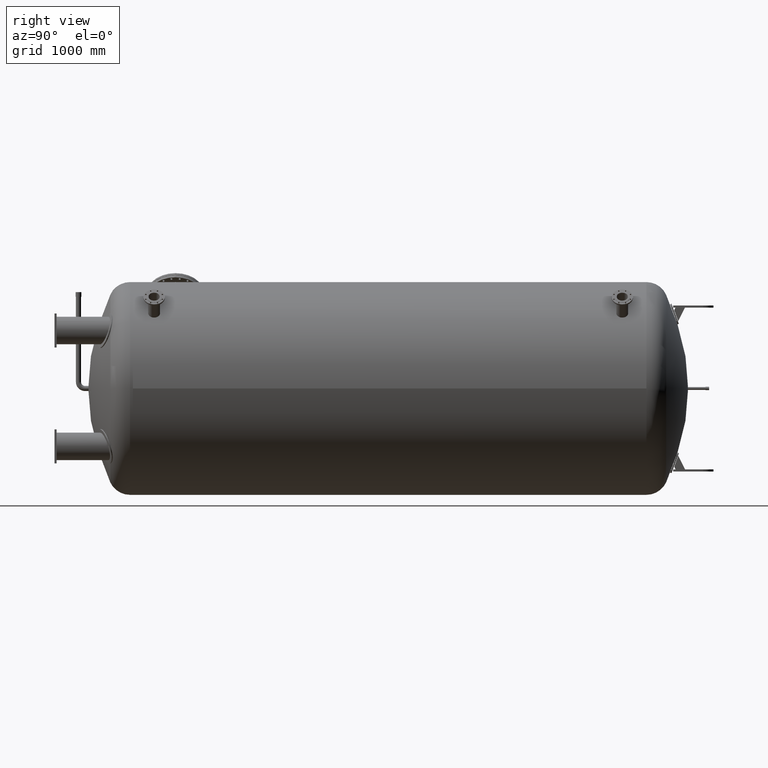
[diagram: clean part render]
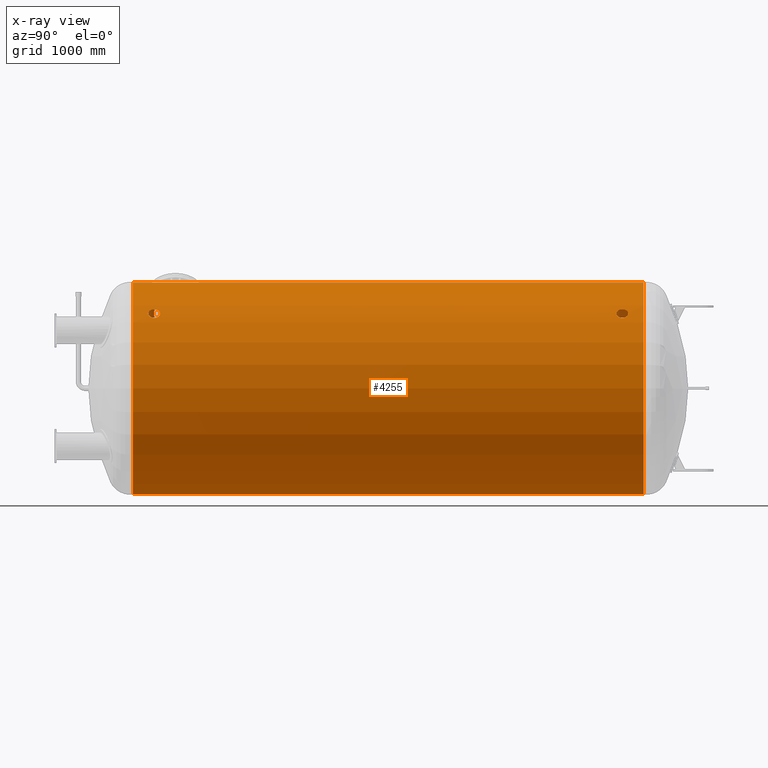
[diagram: x-ray — body ghosted, one internal face saturated and labeled with its STEP entity id]
A machine part, right view, then the same camera in x-ray: the body is ghosted and one INTERNAL B-rep face — a face not visible from any outside direction — is saturated and labeled: STEP entity #4255.
In plain terms, the highlighted cylindrical surface (bore or boss wall) has radius 1244 mm, axis along (0, 1, 0).
Its self-contained STEP definition (entity closure, byte-faithful):
#169=B_SPLINE_CURVE_WITH_KNOTS('',3,(#6929,#6930,#6931,#6932,#6933,#6934,
#6935,#6936,#6937,#6938,#6939,#6940,#6941,#6942,#6943,#6944,#6945,#6946,
#6947,#6948,#6949,#6950,#6951,#6952,#6953,#6954),.UNSPECIFIED.,.F.,.F.,
(4,2,2,2,2,2,2,2,2,2,2,2,4),(0.,0.506647840801163,1.01329568160233,1.51994352217001,
2.0265913627377,2.53323920330538,3.03988704387307,3.54653488467423,4.05318272547539,
4.55983056627656,5.06647840707772,5.5731262476454,6.07977408821309),
 .UNSPECIFIED.);
#170=B_SPLINE_CURVE_WITH_KNOTS('',3,(#6955,#6956,#6957,#6958,#6959,#6960,
#6961,#6962,#6963,#6964),.UNSPECIFIED.,.F.,.F.,(4,2,2,2,4),(6.07977408821309,
6.58642192878077,7.09306976934846,7.59971761014962,8.10636545095079),
 .UNSPECIFIED.);
#173=B_SPLINE_CURVE_WITH_KNOTS('',3,(#7008,#7009,#7010,#7011,#7012,#7013,
#7014,#7015,#7016,#7017,#7018,#7019,#7020,#7021,#7022,#7023,#7024,#7025,
#7026,#7027,#7028,#7029,#7030,#7031,#7032,#7033),.UNSPECIFIED.,.F.,.F.,
(4,2,2,2,2,2,2,2,2,2,2,2,4),(0.,0.506647840801163,1.01329568160233,1.51994352217001,
2.0265913627377,2.53323920330538,3.03988704387307,3.54653488467423,4.05318272547539,
4.55983056627656,5.06647840707772,5.5731262476454,6.07977408821309),
 .UNSPECIFIED.);
#174=B_SPLINE_CURVE_WITH_KNOTS('',3,(#7034,#7035,#7036,#7037,#7038,#7039,
#7040,#7041,#7042,#7043),.UNSPECIFIED.,.F.,.F.,(4,2,2,2,4),(6.07977408821309,
6.58642192878077,7.09306976934846,7.59971761014962,8.10636545095079),
 .UNSPECIFIED.);
#177=B_SPLINE_CURVE_WITH_KNOTS('',3,(#7087,#7088,#7089,#7090,#7091,#7092,
#7093,#7094,#7095,#7096,#7097,#7098,#7099,#7100,#7101,#7102,#7103,#7104,
#7105,#7106,#7107,#7108,#7109,#7110,#7111,#7112),.UNSPECIFIED.,.F.,.F.,
(4,2,2,2,2,2,2,2,2,2,2,2,4),(0.,0.506647840801148,1.0132956816023,1.51994352216998,
2.02659136273766,2.53323920330535,3.03988704387303,3.54653488467418,4.05318272547533,
4.55983056627651,5.06647840707768,5.57312624764536,6.07977408821304),
 .UNSPECIFIED.);
#178=B_SPLINE_CURVE_WITH_KNOTS('',3,(#7113,#7114,#7115,#7116,#7117,#7118,
#7119,#7120,#7121,#7122),.UNSPECIFIED.,.F.,.F.,(4,2,2,2,4),(6.07977408821304,
6.58642192878072,7.0930697693484,7.59971761014958,8.10636545095075),
 .UNSPECIFIED.);
#181=B_SPLINE_CURVE_WITH_KNOTS('',3,(#7166,#7167,#7168,#7169,#7170,#7171,
#7172,#7173,#7174,#7175,#7176,#7177,#7178,#7179,#7180,#7181,#7182,#7183,
#7184,#7185,#7186,#7187,#7188,#7189,#7190,#7191),.UNSPECIFIED.,.F.,.F.,
(4,2,2,2,2,2,2,2,2,2,2,2,4),(0.,0.506647840801163,1.01329568160233,1.51994352217001,
2.0265913627377,2.53323920330538,3.03988704387307,3.54653488467423,4.05318272547539,
4.55983056627656,5.06647840707772,5.5731262476454,6.07977408821309),
 .UNSPECIFIED.);
#182=B_SPLINE_CURVE_WITH_KNOTS('',3,(#7192,#7193,#7194,#7195,#7196,#7197,
#7198,#7199,#7200,#7201),.UNSPECIFIED.,.F.,.F.,(4,2,2,2,4),(6.07977408821309,
6.58642192878077,7.09306976934846,7.59971761014962,8.10636545095079),
 .UNSPECIFIED.);
#185=B_SPLINE_CURVE_WITH_KNOTS('',3,(#7245,#7246,#7247,#7248,#7249,#7250,
#7251,#7252,#7253,#7254,#7255,#7256,#7257,#7258,#7259,#7260,#7261,#7262,
#7263,#7264,#7265,#7266,#7267,#7268,#7269,#7270),.UNSPECIFIED.,.F.,.F.,
(4,2,2,2,2,2,2,2,2,2,2,2,4),(0.,0.506647840801163,1.01329568160233,1.51994352217001,
2.0265913627377,2.53323920330538,3.03988704387307,3.54653488467423,4.05318272547539,
4.55983056627656,5.06647840707772,5.5731262476454,6.07977408821309),
 .UNSPECIFIED.);
#186=B_SPLINE_CURVE_WITH_KNOTS('',3,(#7271,#7272,#7273,#7274,#7275,#7276,
#7277,#7278,#7279,#7280),.UNSPECIFIED.,.F.,.F.,(4,2,2,2,4),(6.07977408821309,
6.58642192878077,7.09306976934846,7.59971761014962,8.10636545095079),
 .UNSPECIFIED.);
#189=B_SPLINE_CURVE_WITH_KNOTS('',3,(#7340,#7341,#7342,#7343,#7344,#7345,
#7346,#7347,#7348,#7349,#7350,#7351,#7352,#7353,#7354,#7355,#7356,#7357,
#7358,#7359,#7360,#7361,#7362,#7363,#7364,#7365,#7366,#7367,#7368,#7369,
#7370,#7371,#7372,#7373,#7374,#7375,#7376,#7377,#7378,#7379,#7380,#7381,
#7382,#7383,#7384,#7385,#7386,#7387,#7388,#7389),.UNSPECIFIED.,.F.,.F.,
(4,2,2,2,2,2,2,2,2,2,2,2,2,2,2,2,2,2,2,2,2,2,2,2,4),(0.,1.315875359373,
2.631750718746,3.947626078119,5.26350143749201,6.57937635451094,7.89525127152988,
9.21112618854882,10.5270011055678,11.8428760225867,13.1587509396056,14.4746258566246,
15.7905007736435,17.1063761330165,18.4222514923895,19.7381268517625,21.0540022111355,
22.3698775705085,23.6857529298815,25.0016282892545,26.3175036486275,27.6333785656465,
28.9492534826654,30.2651283996843,31.5810033167033),.UNSPECIFIED.);
#190=B_SPLINE_CURVE_WITH_KNOTS('',3,(#7390,#7391,#7392,#7393,#7394,#7395,
#7396,#7397,#7398,#7399,#7400,#7401,#7402,#7403,#7404,#7405,#7406,#7407),
 .UNSPECIFIED.,.F.,.F.,(4,2,2,2,2,2,2,2,4),(31.5810033167033,32.8968782337222,
34.2127531507412,35.5286280677601,36.844502984779,38.160378344152,39.476253703525,
40.792129062898,42.108004422271),.UNSPECIFIED.);
#193=B_SPLINE_CURVE_WITH_KNOTS('',3,(#7483,#7484,#7485,#7486,#7487,#7488,
#7489,#7490,#7491,#7492,#7493,#7494,#7495,#7496,#7497,#7498,#7499,#7500,
#7501,#7502,#7503,#7504,#7505,#7506,#7507,#7508,#7509,#7510,#7511,#7512,
#7513,#7514,#7515,#7516,#7517,#7518,#7519,#7520,#7521,#7522,#7523,#7524,
#7525,#7526,#7527,#7528,#7529,#7530,#7531,#7532),.UNSPECIFIED.,.F.,.F.,
(4,2,2,2,2,2,2,2,2,2,2,2,2,2,2,2,2,2,2,2,2,2,2,2,4),(0.,1.31587535937302,
2.63175071874603,3.94762607811905,5.26350143749206,6.579376354511,7.89525127152993,
9.21112618854886,10.5270011055678,11.8428760225867,13.1587509396057,14.4746258566246,
15.7905007736435,17.1063761330165,18.4222514923895,19.7381268517626,21.0540022111356,
22.3698775705086,23.6857529298816,25.0016282892546,26.3175036486276,27.6333785656466,
28.9492534826655,30.2651283996844,31.5810033167034),.UNSPECIFIED.);
#194=B_SPLINE_CURVE_WITH_KNOTS('',3,(#7533,#7534,#7535,#7536,#7537,#7538,
#7539,#7540,#7541,#7542,#7543,#7544,#7545,#7546,#7547,#7548,#7549,#7550),
 .UNSPECIFIED.,.F.,.F.,(4,2,2,2,2,2,2,2,4),(31.5810033167034,32.8968782337223,
34.2127531507412,35.5286280677602,36.8445029847791,38.1603783441521,39.4762537035251,
40.7921290628981,42.1080044222712),.UNSPECIFIED.);
#197=B_SPLINE_CURVE_WITH_KNOTS('',3,(#7626,#7627,#7628,#7629,#7630,#7631,
#7632,#7633,#7634,#7635,#7636,#7637,#7638,#7639,#7640,#7641,#7642,#7643,
#7644,#7645,#7646,#7647,#7648,#7649,#7650,#7651,#7652,#7653,#7654,#7655,
#7656,#7657,#7658,#7659,#7660,#7661,#7662,#7663,#7664,#7665,#7666,#7667,
#7668,#7669,#7670,#7671,#7672,#7673,#7674,#7675),.UNSPECIFIED.,.F.,.F.,
(4,2,2,2,2,2,2,2,2,2,2,2,2,2,2,2,2,2,2,2,2,2,2,2,4),(0.,1.315875359373,
2.631750718746,3.947626078119,5.26350143749201,6.57937635451094,7.89525127152988,
9.21112618854882,10.5270011055678,11.8428760225867,13.1587509396056,14.4746258566246,
15.7905007736435,17.1063761330165,18.4222514923895,19.7381268517625,21.0540022111355,
22.3698775705085,23.6857529298815,25.0016282892545,26.3175036486275,27.6333785656465,
28.9492534826654,30.2651283996843,31.5810033167033),.UNSPECIFIED.);
#198=B_SPLINE_CURVE_WITH_KNOTS('',3,(#7676,#7677,#7678,#7679,#7680,#7681,
#7682,#7683,#7684,#7685,#7686,#7687,#7688,#7689,#7690,#7691,#7692,#7693),
 .UNSPECIFIED.,.F.,.F.,(4,2,2,2,2,2,2,2,4),(31.5810033167033,32.8968782337222,
34.2127531507412,35.5286280677601,36.844502984779,38.160378344152,39.476253703525,
40.792129062898,42.108004422271),.UNSPECIFIED.);
#201=B_SPLINE_CURVE_WITH_KNOTS('',3,(#7769,#7770,#7771,#7772,#7773,#7774,
#7775,#7776,#7777,#7778,#7779,#7780,#7781,#7782,#7783,#7784,#7785,#7786,
#7787,#7788,#7789,#7790,#7791,#7792,#7793,#7794,#7795,#7796,#7797,#7798,
#7799,#7800,#7801,#7802,#7803,#7804,#7805,#7806,#7807,#7808,#7809,#7810,
#7811,#7812,#7813,#7814,#7815,#7816,#7817,#7818),.UNSPECIFIED.,.F.,.F.,
(4,2,2,2,2,2,2,2,2,2,2,2,2,2,2,2,2,2,2,2,2,2,2,2,4),(0.,1.31587535937302,
2.63175071874603,3.94762607811905,5.26350143749206,6.579376354511,7.89525127152993,
9.21112618854886,10.5270011055678,11.8428760225867,13.1587509396057,14.4746258566246,
15.7905007736435,17.1063761330165,18.4222514923895,19.7381268517626,21.0540022111356,
22.3698775705086,23.6857529298816,25.0016282892546,26.3175036486276,27.6333785656466,
28.9492534826655,30.2651283996844,31.5810033167034),.UNSPECIFIED.);
#202=B_SPLINE_CURVE_WITH_KNOTS('',3,(#7819,#7820,#7821,#7822,#7823,#7824,
#7825,#7826,#7827,#7828,#7829,#7830,#7831,#7832,#7833,#7834,#7835,#7836),
 .UNSPECIFIED.,.F.,.F.,(4,2,2,2,2,2,2,2,4),(31.5810033167034,32.8968782337223,
34.2127531507412,35.5286280677602,36.8445029847791,38.1603783441521,39.4762537035251,
40.7921290628981,42.1080044222712),.UNSPECIFIED.);
#205=B_SPLINE_CURVE_WITH_KNOTS('',3,(#7944,#7945,#7946,#7947,#7948,#7949,
#7950,#7951,#7952,#7953,#7954,#7955,#7956,#7957,#7958,#7959,#7960,#7961,
#7962,#7963,#7964,#7965,#7966,#7967,#7968,#7969,#7970,#7971,#7972,#7973,
#7974,#7975,#7976,#7977,#7978,#7979,#7980,#7981,#7982,#7983,#7984,#7985,
#7986,#7987,#7988,#7989,#7990,#7991,#7992,#7993,#7994,#7995,#7996,#7997,
#7998,#7999,#8000,#8001,#8002,#8003,#8004,#8005,#8006,#8007,#8008,#8009,
#8010,#8011,#8012,#8013,#8014,#8015,#8016,#8017,#8018,#8019,#8020,#8021,
#8022,#8023,#8024,#8025,#8026,#8027,#8028,#8029,#8030,#8031,#8032,#8033,
#8034,#8035,#8036,#8037,#8038,#8039,#8040,#8041),.UNSPECIFIED.,.F.,.F.,
(4,2,2,2,2,2,2,2,2,2,2,2,2,2,2,2,2,2,2,2,2,2,2,2,2,2,2,2,2,2,2,2,2,2,2,
2,2,2,2,2,2,2,2,2,2,2,2,2,4),(0.,2.39930639612063,4.79861279224126,7.19791918836188,
9.59722558448251,11.9965319806031,14.3958383767238,16.7951447728444,19.194451168965,
21.5936112864104,23.9927714038557,26.391931521301,28.7910916387464,31.1902517561917,
33.5894118736371,35.9885719910824,38.3877321085277,40.7868922259731,43.1860523434184,
45.5852124608638,47.9843725783091,50.3835326957544,52.7826928131998,55.1818529306451,
57.5810130480905,59.9803194442111,62.3796258403317,64.7789322364524,67.178238632573,
69.5775450286936,71.9768514248142,74.3761578209349,76.7754642170555,79.1747706131761,
81.5740770092968,83.9733834054174,86.372689801538,88.7719961976586,91.1713025937792,
93.5706089898999,95.9699153860205,98.3690755034658,100.768235620911,103.167395738357,
105.566555855802,107.965715973247,110.364876090693,112.764036208138,115.163196325583),
 .UNSPECIFIED.);
#206=B_SPLINE_CURVE_WITH_KNOTS('',3,(#8042,#8043,#8044,#8045,#8046,#8047,
#8048,#8049,#8050,#8051,#8052,#8053,#8054,#8055,#8056,#8057,#8058,#8059,
#8060,#8061,#8062,#8063,#8064,#8065,#8066,#8067,#8068,#8069,#8070,#8071,
#8072,#8073,#8074,#8075),.UNSPECIFIED.,.F.,.F.,(4,2,2,2,2,2,2,2,2,2,2,2,
2,2,2,2,4),(115.163196325583,117.562356443029,119.961516560474,122.360676677919,
124.759836795365,127.15899691281,129.558157030255,131.957317147701,134.356477265146,
136.755783661267,139.155090057387,141.554396453508,143.953702849628,146.353009245749,
148.75231564187,151.15162203799,153.550928434111),.UNSPECIFIED.);
#399=FACE_BOUND('',#834,.T.);
#400=FACE_BOUND('',#835,.T.);
#401=FACE_BOUND('',#836,.T.);
#402=FACE_BOUND('',#837,.T.);
#403=FACE_BOUND('',#838,.T.);
#404=FACE_BOUND('',#839,.T.);
#405=FACE_BOUND('',#840,.T.);
#406=FACE_BOUND('',#841,.T.);
#407=FACE_BOUND('',#842,.T.);
#408=FACE_BOUND('',#843,.T.);
#600=FACE_OUTER_BOUND('',#833,.T.);
#833=EDGE_LOOP('',(#3001,#3002,#3003,#3004,#3005,#3006));
#834=EDGE_LOOP('',(#3007,#3008));
#835=EDGE_LOOP('',(#3009,#3010));
#836=EDGE_LOOP('',(#3011,#3012));
#837=EDGE_LOOP('',(#3013,#3014));
#838=EDGE_LOOP('',(#3015,#3016));
#839=EDGE_LOOP('',(#3017,#3018));
#840=EDGE_LOOP('',(#3019,#3020));
#841=EDGE_LOOP('',(#3021,#3022));
#842=EDGE_LOOP('',(#3023,#3024));
#843=EDGE_LOOP('',(#3025,#3026));
#1225=LINE('',#8148,#1451);
#1451=VECTOR('',#5588,1244.);
#1682=CIRCLE('',#4964,1244.);
#1683=CIRCLE('',#4965,1244.);
#1684=CIRCLE('',#4966,1244.);
#1685=CIRCLE('',#4967,1244.);
#1955=VERTEX_POINT('',#6926);
#1956=VERTEX_POINT('',#6928);
#1959=VERTEX_POINT('',#7005);
#1960=VERTEX_POINT('',#7007);
#1963=VERTEX_POINT('',#7084);
#1964=VERTEX_POINT('',#7086);
#1967=VERTEX_POINT('',#7163);
#1968=VERTEX_POINT('',#7165);
#1971=VERTEX_POINT('',#7242);
#1972=VERTEX_POINT('',#7244);
#1975=VERTEX_POINT('',#7337);
#1976=VERTEX_POINT('',#7339);
#1979=VERTEX_POINT('',#7480);
#1980=VERTEX_POINT('',#7482);
#1983=VERTEX_POINT('',#7623);
#1984=VERTEX_POINT('',#7625);
#1987=VERTEX_POINT('',#7766);
#1988=VERTEX_POINT('',#7768);
#1991=VERTEX_POINT('',#7941);
#1992=VERTEX_POINT('',#7943);
#1993=VERTEX_POINT('',#8144);
#1994=VERTEX_POINT('',#8145);
#1995=VERTEX_POINT('',#8147);
#1996=VERTEX_POINT('',#8149);
#2353=EDGE_CURVE('',#1956,#1955,#169,.T.);
#2354=EDGE_CURVE('',#1955,#1956,#170,.T.);
#2358=EDGE_CURVE('',#1960,#1959,#173,.T.);
#2359=EDGE_CURVE('',#1959,#1960,#174,.T.);
#2363=EDGE_CURVE('',#1964,#1963,#177,.T.);
#2364=EDGE_CURVE('',#1963,#1964,#178,.T.);
#2368=EDGE_CURVE('',#1968,#1967,#181,.T.);
#2369=EDGE_CURVE('',#1967,#1968,#182,.T.);
#2373=EDGE_CURVE('',#1972,#1971,#185,.T.);
#2374=EDGE_CURVE('',#1971,#1972,#186,.T.);
#2378=EDGE_CURVE('',#1976,#1975,#189,.T.);
#2379=EDGE_CURVE('',#1975,#1976,#190,.T.);
#2383=EDGE_CURVE('',#1980,#1979,#193,.T.);
#2384=EDGE_CURVE('',#1979,#1980,#194,.T.);
#2388=EDGE_CURVE('',#1984,#1983,#197,.T.);
#2389=EDGE_CURVE('',#1983,#1984,#198,.T.);
#2393=EDGE_CURVE('',#1988,#1987,#201,.T.);
#2394=EDGE_CURVE('',#1987,#1988,#202,.T.);
#2398=EDGE_CURVE('',#1992,#1991,#205,.T.);
#2399=EDGE_CURVE('',#1991,#1992,#206,.T.);
#2401=EDGE_CURVE('',#1993,#1994,#1682,.T.);
#2402=EDGE_CURVE('',#1994,#1995,#1225,.T.);
#2403=EDGE_CURVE('',#1996,#1995,#1683,.T.);
#2404=EDGE_CURVE('',#1995,#1996,#1684,.T.);
#2405=EDGE_CURVE('',#1994,#1993,#1685,.T.);
#3001=ORIENTED_EDGE('',*,*,#2401,.T.);
#3002=ORIENTED_EDGE('',*,*,#2402,.T.);
#3003=ORIENTED_EDGE('',*,*,#2403,.F.);
#3004=ORIENTED_EDGE('',*,*,#2404,.F.);
#3005=ORIENTED_EDGE('',*,*,#2402,.F.);
#3006=ORIENTED_EDGE('',*,*,#2405,.T.);
#3007=ORIENTED_EDGE('',*,*,#2353,.T.);
#3008=ORIENTED_EDGE('',*,*,#2354,.T.);
#3009=ORIENTED_EDGE('',*,*,#2358,.T.);
#3010=ORIENTED_EDGE('',*,*,#2359,.T.);
#3011=ORIENTED_EDGE('',*,*,#2363,.T.);
#3012=ORIENTED_EDGE('',*,*,#2364,.T.);
#3013=ORIENTED_EDGE('',*,*,#2368,.T.);
#3014=ORIENTED_EDGE('',*,*,#2369,.T.);
#3015=ORIENTED_EDGE('',*,*,#2373,.T.);
#3016=ORIENTED_EDGE('',*,*,#2374,.T.);
#3017=ORIENTED_EDGE('',*,*,#2378,.T.);
#3018=ORIENTED_EDGE('',*,*,#2379,.T.);
#3019=ORIENTED_EDGE('',*,*,#2383,.T.);
#3020=ORIENTED_EDGE('',*,*,#2384,.T.);
#3021=ORIENTED_EDGE('',*,*,#2388,.T.);
#3022=ORIENTED_EDGE('',*,*,#2389,.T.);
#3023=ORIENTED_EDGE('',*,*,#2393,.T.);
#3024=ORIENTED_EDGE('',*,*,#2394,.T.);
#3025=ORIENTED_EDGE('',*,*,#2398,.T.);
#3026=ORIENTED_EDGE('',*,*,#2399,.T.);
#4050=CYLINDRICAL_SURFACE('',#4963,1244.);
#4255=ADVANCED_FACE('',(#600,#399,#400,#401,#402,#403,#404,#405,#406,#407,
#408),#4050,.F.);
#4963=AXIS2_PLACEMENT_3D('',#8143,#5584,#5585);
#4964=AXIS2_PLACEMENT_3D('',#8146,#5586,#5587);
#4965=AXIS2_PLACEMENT_3D('',#8150,#5589,#5590);
#4966=AXIS2_PLACEMENT_3D('',#8151,#5591,#5592);
#4967=AXIS2_PLACEMENT_3D('',#8152,#5593,#5594);
#5584=DIRECTION('center_axis',(0.,1.,0.));
#5585=DIRECTION('ref_axis',(-1.,0.,0.));
#5586=DIRECTION('center_axis',(0.,1.,0.));
#5587=DIRECTION('ref_axis',(1.,0.,0.));
#5588=DIRECTION('',(0.,-1.,0.));
#5589=DIRECTION('center_axis',(0.,1.,0.));
#5590=DIRECTION('ref_axis',(1.,0.,0.));
#5591=DIRECTION('center_axis',(0.,1.,0.));
#5592=DIRECTION('ref_axis',(1.,0.,0.));
#5593=DIRECTION('center_axis',(0.,1.,0.));
#5594=DIRECTION('ref_axis',(1.,0.,0.));
#6926=CARTESIAN_POINT('',(-1168.97762025767,4413.45,425.473058297131));
#6928=CARTESIAN_POINT('',(-1173.50946413052,4400.,412.80932353339));
#6929=CARTESIAN_POINT('Ctrl Pts',(-1173.50946413052,4400.,412.80932353339));
#6930=CARTESIAN_POINT('Ctrl Pts',(-1173.50946413052,4398.311173864,412.80932353339));
#6931=CARTESIAN_POINT('Ctrl Pts',(-1173.39759141645,4396.50978857211,413.127781116768));
#6932=CARTESIAN_POINT('Ctrl Pts',(-1172.94101051952,4393.19599057381,414.422317103967));
#6933=CARTESIAN_POINT('Ctrl Pts',(-1172.59611783093,4391.68357675589,415.398327580127));
#6934=CARTESIAN_POINT('Ctrl Pts',(-1171.79642074341,4389.29525083075,417.648865006801));
#6935=CARTESIAN_POINT('Ctrl Pts',(-1171.28828033192,4388.26014074182,419.073394190536));
#6936=CARTESIAN_POINT('Ctrl Pts',(-1170.16777890146,4386.88751496208,422.192035195029));
#6937=CARTESIAN_POINT('Ctrl Pts',(-1169.55523281449,4386.55,423.886080840069));
#6938=CARTESIAN_POINT('Ctrl Pts',(-1168.40000770085,4386.55,427.060035754193));
#6939=CARTESIAN_POINT('Ctrl Pts',(-1167.78033367605,4386.88751496208,428.75148704203));
#6940=CARTESIAN_POINT('Ctrl Pts',(-1166.63406377361,4388.26014074182,431.860749089745));
#6941=CARTESIAN_POINT('Ctrl Pts',(-1166.10765220321,4389.29525083075,433.278628115489));
#6942=CARTESIAN_POINT('Ctrl Pts',(-1165.27363814029,4391.68357675589,435.516675184585));
#6943=CARTESIAN_POINT('Ctrl Pts',(-1164.91047382685,4393.19599057381,436.48603533317));
#6944=CARTESIAN_POINT('Ctrl Pts',(-1164.42812339292,4396.50978857211,437.771191975949));
#6945=CARTESIAN_POINT('Ctrl Pts',(-1164.30912227506,4398.311173864,438.087055032531));
#6946=CARTESIAN_POINT('Ctrl Pts',(-1164.30912227506,4401.688826136,438.087055032531));
#6947=CARTESIAN_POINT('Ctrl Pts',(-1164.42812339292,4403.49021142789,437.771191975949));
#6948=CARTESIAN_POINT('Ctrl Pts',(-1164.91047382685,4406.80400942619,436.48603533317));
#6949=CARTESIAN_POINT('Ctrl Pts',(-1165.27363814029,4408.31642324411,435.516675184585));
#6950=CARTESIAN_POINT('Ctrl Pts',(-1166.10765220321,4410.70474916925,433.278628115489));
#6951=CARTESIAN_POINT('Ctrl Pts',(-1166.63406377361,4411.73985925818,431.860749089745));
#6952=CARTESIAN_POINT('Ctrl Pts',(-1167.78033367605,4413.11248503792,428.75148704203));
#6953=CARTESIAN_POINT('Ctrl Pts',(-1168.40000770085,4413.45,427.060035754193));
#6954=CARTESIAN_POINT('Ctrl Pts',(-1168.97762025767,4413.45,425.473058297131));
#6955=CARTESIAN_POINT('Ctrl Pts',(-1168.97762025767,4413.45,425.473058297131));
#6956=CARTESIAN_POINT('Ctrl Pts',(-1169.55523281449,4413.45,423.886080840069));
#6957=CARTESIAN_POINT('Ctrl Pts',(-1170.16777890146,4413.11248503792,422.192035195029));
#6958=CARTESIAN_POINT('Ctrl Pts',(-1171.28828033192,4411.73985925818,419.073394190536));
#6959=CARTESIAN_POINT('Ctrl Pts',(-1171.79642074341,4410.70474916925,417.648865006801));
#6960=CARTESIAN_POINT('Ctrl Pts',(-1172.59611783093,4408.31642324411,415.398327580127));
#6961=CARTESIAN_POINT('Ctrl Pts',(-1172.94101051952,4406.80400942619,414.422317103967));
#6962=CARTESIAN_POINT('Ctrl Pts',(-1173.39759141645,4403.49021142789,413.127781116768));
#6963=CARTESIAN_POINT('Ctrl Pts',(-1173.50946413052,4401.688826136,412.80932353339));
#6964=CARTESIAN_POINT('Ctrl Pts',(-1173.50946413052,4400.,412.80932353339));
#7005=CARTESIAN_POINT('',(-1168.97762025767,3013.45,425.473058297131));
#7007=CARTESIAN_POINT('',(-1173.50946413052,3000.,412.80932353339));
#7008=CARTESIAN_POINT('Ctrl Pts',(-1173.50946413052,3000.,412.80932353339));
#7009=CARTESIAN_POINT('Ctrl Pts',(-1173.50946413052,2998.311173864,412.80932353339));
#7010=CARTESIAN_POINT('Ctrl Pts',(-1173.39759141645,2996.50978857211,413.127781116768));
#7011=CARTESIAN_POINT('Ctrl Pts',(-1172.94101051952,2993.19599057381,414.422317103967));
#7012=CARTESIAN_POINT('Ctrl Pts',(-1172.59611783093,2991.68357675589,415.398327580127));
#7013=CARTESIAN_POINT('Ctrl Pts',(-1171.79642074341,2989.29525083075,417.648865006801));
#7014=CARTESIAN_POINT('Ctrl Pts',(-1171.28828033192,2988.26014074182,419.073394190536));
#7015=CARTESIAN_POINT('Ctrl Pts',(-1170.16777890146,2986.88751496208,422.192035195029));
#7016=CARTESIAN_POINT('Ctrl Pts',(-1169.55523281449,2986.55,423.886080840069));
#7017=CARTESIAN_POINT('Ctrl Pts',(-1168.40000770085,2986.55,427.060035754193));
#7018=CARTESIAN_POINT('Ctrl Pts',(-1167.78033367605,2986.88751496208,428.75148704203));
#7019=CARTESIAN_POINT('Ctrl Pts',(-1166.63406377361,2988.26014074182,431.860749089745));
#7020=CARTESIAN_POINT('Ctrl Pts',(-1166.10765220321,2989.29525083075,433.278628115489));
#7021=CARTESIAN_POINT('Ctrl Pts',(-1165.27363814029,2991.68357675589,435.516675184585));
#7022=CARTESIAN_POINT('Ctrl Pts',(-1164.91047382685,2993.19599057381,436.48603533317));
#7023=CARTESIAN_POINT('Ctrl Pts',(-1164.42812339292,2996.50978857211,437.771191975949));
#7024=CARTESIAN_POINT('Ctrl Pts',(-1164.30912227506,2998.311173864,438.087055032531));
#7025=CARTESIAN_POINT('Ctrl Pts',(-1164.30912227506,3001.688826136,438.087055032531));
#7026=CARTESIAN_POINT('Ctrl Pts',(-1164.42812339292,3003.49021142789,437.771191975949));
#7027=CARTESIAN_POINT('Ctrl Pts',(-1164.91047382685,3006.80400942619,436.48603533317));
#7028=CARTESIAN_POINT('Ctrl Pts',(-1165.27363814029,3008.31642324411,435.516675184585));
#7029=CARTESIAN_POINT('Ctrl Pts',(-1166.10765220321,3010.70474916925,433.278628115489));
#7030=CARTESIAN_POINT('Ctrl Pts',(-1166.63406377361,3011.73985925818,431.860749089745));
#7031=CARTESIAN_POINT('Ctrl Pts',(-1167.78033367605,3013.11248503792,428.75148704203));
#7032=CARTESIAN_POINT('Ctrl Pts',(-1168.40000770085,3013.45,427.060035754193));
#7033=CARTESIAN_POINT('Ctrl Pts',(-1168.97762025767,3013.45,425.473058297131));
#7034=CARTESIAN_POINT('Ctrl Pts',(-1168.97762025767,3013.45,425.473058297131));
#7035=CARTESIAN_POINT('Ctrl Pts',(-1169.55523281449,3013.45,423.886080840069));
#7036=CARTESIAN_POINT('Ctrl Pts',(-1170.16777890146,3013.11248503792,422.192035195029));
#7037=CARTESIAN_POINT('Ctrl Pts',(-1171.28828033192,3011.73985925818,419.073394190536));
#7038=CARTESIAN_POINT('Ctrl Pts',(-1171.79642074341,3010.70474916925,417.648865006801));
#7039=CARTESIAN_POINT('Ctrl Pts',(-1172.59611783093,3008.31642324411,415.398327580127));
#7040=CARTESIAN_POINT('Ctrl Pts',(-1172.94101051952,3006.80400942619,414.422317103967));
#7041=CARTESIAN_POINT('Ctrl Pts',(-1173.39759141645,3003.49021142789,413.127781116768));
#7042=CARTESIAN_POINT('Ctrl Pts',(-1173.50946413052,3001.688826136,412.80932353339));
#7043=CARTESIAN_POINT('Ctrl Pts',(-1173.50946413052,3000.,412.80932353339));
#7084=CARTESIAN_POINT('',(-1168.97762025767,1613.45,425.473058297131));
#7086=CARTESIAN_POINT('',(-1173.50946413052,1600.,412.80932353339));
#7087=CARTESIAN_POINT('Ctrl Pts',(-1173.50946413052,1600.,412.80932353339));
#7088=CARTESIAN_POINT('Ctrl Pts',(-1173.50946413052,1598.311173864,412.80932353339));
#7089=CARTESIAN_POINT('Ctrl Pts',(-1173.39759141645,1596.50978857211,413.127781116768));
#7090=CARTESIAN_POINT('Ctrl Pts',(-1172.94101051952,1593.19599057381,414.422317103967));
#7091=CARTESIAN_POINT('Ctrl Pts',(-1172.59611783093,1591.68357675589,415.398327580127));
#7092=CARTESIAN_POINT('Ctrl Pts',(-1171.79642074341,1589.29525083075,417.648865006801));
#7093=CARTESIAN_POINT('Ctrl Pts',(-1171.28828033192,1588.26014074182,419.073394190535));
#7094=CARTESIAN_POINT('Ctrl Pts',(-1170.16777890146,1586.88751496208,422.192035195029));
#7095=CARTESIAN_POINT('Ctrl Pts',(-1169.55523281449,1586.55,423.886080840069));
#7096=CARTESIAN_POINT('Ctrl Pts',(-1168.40000770085,1586.55,427.060035754193));
#7097=CARTESIAN_POINT('Ctrl Pts',(-1167.78033367605,1586.88751496208,428.75148704203));
#7098=CARTESIAN_POINT('Ctrl Pts',(-1166.63406377361,1588.26014074182,431.860749089745));
#7099=CARTESIAN_POINT('Ctrl Pts',(-1166.10765220321,1589.29525083075,433.278628115489));
#7100=CARTESIAN_POINT('Ctrl Pts',(-1165.27363814029,1591.68357675589,435.516675184585));
#7101=CARTESIAN_POINT('Ctrl Pts',(-1164.91047382685,1593.19599057381,436.48603533317));
#7102=CARTESIAN_POINT('Ctrl Pts',(-1164.42812339292,1596.50978857211,437.771191975949));
#7103=CARTESIAN_POINT('Ctrl Pts',(-1164.30912227506,1598.311173864,438.087055032531));
#7104=CARTESIAN_POINT('Ctrl Pts',(-1164.30912227506,1601.688826136,438.087055032531));
#7105=CARTESIAN_POINT('Ctrl Pts',(-1164.42812339292,1603.49021142789,437.771191975949));
#7106=CARTESIAN_POINT('Ctrl Pts',(-1164.91047382685,1606.80400942619,436.48603533317));
#7107=CARTESIAN_POINT('Ctrl Pts',(-1165.27363814029,1608.31642324411,435.516675184585));
#7108=CARTESIAN_POINT('Ctrl Pts',(-1166.10765220321,1610.70474916925,433.278628115489));
#7109=CARTESIAN_POINT('Ctrl Pts',(-1166.63406377361,1611.73985925818,431.860749089745));
#7110=CARTESIAN_POINT('Ctrl Pts',(-1167.78033367605,1613.11248503792,428.75148704203));
#7111=CARTESIAN_POINT('Ctrl Pts',(-1168.40000770085,1613.45,427.060035754193));
#7112=CARTESIAN_POINT('Ctrl Pts',(-1168.97762025767,1613.45,425.473058297131));
#7113=CARTESIAN_POINT('Ctrl Pts',(-1168.97762025767,1613.45,425.473058297131));
#7114=CARTESIAN_POINT('Ctrl Pts',(-1169.55523281449,1613.45,423.886080840069));
#7115=CARTESIAN_POINT('Ctrl Pts',(-1170.16777890146,1613.11248503792,422.192035195029));
#7116=CARTESIAN_POINT('Ctrl Pts',(-1171.28828033192,1611.73985925818,419.073394190536));
#7117=CARTESIAN_POINT('Ctrl Pts',(-1171.79642074341,1610.70474916925,417.648865006801));
#7118=CARTESIAN_POINT('Ctrl Pts',(-1172.59611783093,1608.31642324411,415.398327580127));
#7119=CARTESIAN_POINT('Ctrl Pts',(-1172.94101051952,1606.80400942619,414.422317103967));
#7120=CARTESIAN_POINT('Ctrl Pts',(-1173.39759141645,1603.49021142789,413.127781116768));
#7121=CARTESIAN_POINT('Ctrl Pts',(-1173.50946413052,1601.688826136,412.80932353339));
#7122=CARTESIAN_POINT('Ctrl Pts',(-1173.50946413052,1600.,412.80932353339));
#7163=CARTESIAN_POINT('',(-1168.97762025767,5813.45,425.473058297131));
#7165=CARTESIAN_POINT('',(-1173.50946413052,5800.,412.80932353339));
#7166=CARTESIAN_POINT('Ctrl Pts',(-1173.50946413052,5800.,412.80932353339));
#7167=CARTESIAN_POINT('Ctrl Pts',(-1173.50946413052,5798.311173864,412.80932353339));
#7168=CARTESIAN_POINT('Ctrl Pts',(-1173.39759141645,5796.50978857211,413.127781116768));
#7169=CARTESIAN_POINT('Ctrl Pts',(-1172.94101051952,5793.19599057381,414.422317103967));
#7170=CARTESIAN_POINT('Ctrl Pts',(-1172.59611783093,5791.68357675589,415.398327580127));
#7171=CARTESIAN_POINT('Ctrl Pts',(-1171.79642074341,5789.29525083075,417.648865006801));
#7172=CARTESIAN_POINT('Ctrl Pts',(-1171.28828033192,5788.26014074182,419.073394190536));
#7173=CARTESIAN_POINT('Ctrl Pts',(-1170.16777890146,5786.88751496208,422.192035195029));
#7174=CARTESIAN_POINT('Ctrl Pts',(-1169.55523281449,5786.55,423.886080840069));
#7175=CARTESIAN_POINT('Ctrl Pts',(-1168.40000770085,5786.55,427.060035754193));
#7176=CARTESIAN_POINT('Ctrl Pts',(-1167.78033367605,5786.88751496208,428.75148704203));
#7177=CARTESIAN_POINT('Ctrl Pts',(-1166.63406377361,5788.26014074182,431.860749089745));
#7178=CARTESIAN_POINT('Ctrl Pts',(-1166.10765220321,5789.29525083075,433.278628115489));
#7179=CARTESIAN_POINT('Ctrl Pts',(-1165.27363814029,5791.68357675589,435.516675184585));
#7180=CARTESIAN_POINT('Ctrl Pts',(-1164.91047382685,5793.19599057381,436.48603533317));
#7181=CARTESIAN_POINT('Ctrl Pts',(-1164.42812339292,5796.50978857211,437.771191975949));
#7182=CARTESIAN_POINT('Ctrl Pts',(-1164.30912227506,5798.311173864,438.087055032531));
#7183=CARTESIAN_POINT('Ctrl Pts',(-1164.30912227506,5801.688826136,438.087055032531));
#7184=CARTESIAN_POINT('Ctrl Pts',(-1164.42812339292,5803.49021142789,437.771191975949));
#7185=CARTESIAN_POINT('Ctrl Pts',(-1164.91047382685,5806.80400942619,436.48603533317));
#7186=CARTESIAN_POINT('Ctrl Pts',(-1165.27363814029,5808.31642324411,435.516675184585));
#7187=CARTESIAN_POINT('Ctrl Pts',(-1166.10765220321,5810.70474916925,433.278628115489));
#7188=CARTESIAN_POINT('Ctrl Pts',(-1166.63406377361,5811.73985925818,431.860749089745));
#7189=CARTESIAN_POINT('Ctrl Pts',(-1167.78033367605,5813.11248503792,428.75148704203));
#7190=CARTESIAN_POINT('Ctrl Pts',(-1168.40000770085,5813.45,427.060035754193));
#7191=CARTESIAN_POINT('Ctrl Pts',(-1168.97762025767,5813.45,425.473058297131));
#7192=CARTESIAN_POINT('Ctrl Pts',(-1168.97762025767,5813.45,425.473058297131));
#7193=CARTESIAN_POINT('Ctrl Pts',(-1169.55523281449,5813.45,423.886080840069));
#7194=CARTESIAN_POINT('Ctrl Pts',(-1170.16777890146,5813.11248503792,422.192035195029));
#7195=CARTESIAN_POINT('Ctrl Pts',(-1171.28828033192,5811.73985925818,419.073394190536));
#7196=CARTESIAN_POINT('Ctrl Pts',(-1171.79642074341,5810.70474916925,417.648865006801));
#7197=CARTESIAN_POINT('Ctrl Pts',(-1172.59611783093,5808.31642324411,415.398327580127));
#7198=CARTESIAN_POINT('Ctrl Pts',(-1172.94101051952,5806.80400942619,414.422317103967));
#7199=CARTESIAN_POINT('Ctrl Pts',(-1173.39759141645,5803.49021142789,413.127781116768));
#7200=CARTESIAN_POINT('Ctrl Pts',(-1173.50946413052,5801.688826136,412.80932353339));
#7201=CARTESIAN_POINT('Ctrl Pts',(-1173.50946413052,5800.,412.80932353339));
#7242=CARTESIAN_POINT('',(-1168.97762025767,213.45,425.473058297131));
#7244=CARTESIAN_POINT('',(-1173.50946413052,200.,412.80932353339));
#7245=CARTESIAN_POINT('Ctrl Pts',(-1173.50946413052,200.,412.80932353339));
#7246=CARTESIAN_POINT('Ctrl Pts',(-1173.50946413052,198.311173863996,412.80932353339));
#7247=CARTESIAN_POINT('Ctrl Pts',(-1173.39759141645,196.509788572108,413.127781116768));
#7248=CARTESIAN_POINT('Ctrl Pts',(-1172.94101051952,193.195990573812,414.422317103967));
#7249=CARTESIAN_POINT('Ctrl Pts',(-1172.59611783093,191.683576755886,415.398327580127));
#7250=CARTESIAN_POINT('Ctrl Pts',(-1171.79642074341,189.295250830747,417.648865006801));
#7251=CARTESIAN_POINT('Ctrl Pts',(-1171.28828033192,188.26014074182,419.073394190536));
#7252=CARTESIAN_POINT('Ctrl Pts',(-1170.16777890146,186.887514962076,422.192035195029));
#7253=CARTESIAN_POINT('Ctrl Pts',(-1169.55523281449,186.55,423.886080840069));
#7254=CARTESIAN_POINT('Ctrl Pts',(-1168.40000770085,186.55,427.060035754193));
#7255=CARTESIAN_POINT('Ctrl Pts',(-1167.78033367605,186.887514962076,428.75148704203));
#7256=CARTESIAN_POINT('Ctrl Pts',(-1166.63406377361,188.26014074182,431.860749089745));
#7257=CARTESIAN_POINT('Ctrl Pts',(-1166.10765220321,189.295250830747,433.278628115489));
#7258=CARTESIAN_POINT('Ctrl Pts',(-1165.27363814029,191.683576755886,435.516675184585));
#7259=CARTESIAN_POINT('Ctrl Pts',(-1164.91047382685,193.195990573812,436.48603533317));
#7260=CARTESIAN_POINT('Ctrl Pts',(-1164.42812339292,196.509788572108,437.771191975949));
#7261=CARTESIAN_POINT('Ctrl Pts',(-1164.30912227506,198.311173863996,438.087055032531));
#7262=CARTESIAN_POINT('Ctrl Pts',(-1164.30912227506,201.688826136004,438.087055032531));
#7263=CARTESIAN_POINT('Ctrl Pts',(-1164.42812339292,203.490211427892,437.771191975949));
#7264=CARTESIAN_POINT('Ctrl Pts',(-1164.91047382685,206.804009426188,436.48603533317));
#7265=CARTESIAN_POINT('Ctrl Pts',(-1165.27363814029,208.316423244114,435.516675184585));
#7266=CARTESIAN_POINT('Ctrl Pts',(-1166.10765220321,210.704749169253,433.278628115489));
#7267=CARTESIAN_POINT('Ctrl Pts',(-1166.63406377361,211.73985925818,431.860749089745));
#7268=CARTESIAN_POINT('Ctrl Pts',(-1167.78033367605,213.112485037924,428.75148704203));
#7269=CARTESIAN_POINT('Ctrl Pts',(-1168.40000770085,213.45,427.060035754193));
#7270=CARTESIAN_POINT('Ctrl Pts',(-1168.97762025767,213.45,425.473058297131));
#7271=CARTESIAN_POINT('Ctrl Pts',(-1168.97762025767,213.45,425.473058297131));
#7272=CARTESIAN_POINT('Ctrl Pts',(-1169.55523281449,213.45,423.886080840069));
#7273=CARTESIAN_POINT('Ctrl Pts',(-1170.16777890146,213.112485037924,422.192035195029));
#7274=CARTESIAN_POINT('Ctrl Pts',(-1171.28828033192,211.73985925818,419.073394190536));
#7275=CARTESIAN_POINT('Ctrl Pts',(-1171.79642074341,210.704749169253,417.648865006801));
#7276=CARTESIAN_POINT('Ctrl Pts',(-1172.59611783093,208.316423244114,415.398327580127));
#7277=CARTESIAN_POINT('Ctrl Pts',(-1172.94101051952,206.804009426188,414.422317103967));
#7278=CARTESIAN_POINT('Ctrl Pts',(-1173.39759141645,203.490211427892,413.127781116768));
#7279=CARTESIAN_POINT('Ctrl Pts',(-1173.50946413052,201.688826136004,412.80932353339));
#7280=CARTESIAN_POINT('Ctrl Pts',(-1173.50946413052,200.,412.80932353339));
#7337=CARTESIAN_POINT('',(879.640835796064,5819.85,879.640835796064));
#7339=CARTESIAN_POINT('',(828.861680568651,5750.,927.644497900412));
#7340=CARTESIAN_POINT('Ctrl Pts',(828.861680568651,5750.,927.644497900412));
#7341=CARTESIAN_POINT('Ctrl Pts',(828.861680568651,5745.61374880209,927.644497900412));
#7342=CARTESIAN_POINT('Ctrl Pts',(829.175397262444,5741.07796970483,927.364515441318));
#7343=CARTESIAN_POINT('Ctrl Pts',(830.494627733353,5732.05576508151,926.183274104567));
#7344=CARTESIAN_POINT('Ctrl Pts',(831.499826793643,5727.56926415606,925.282239671695));
#7345=CARTESIAN_POINT('Ctrl Pts',(834.151242205652,5718.96473893763,922.892675302939));
#7346=CARTESIAN_POINT('Ctrl Pts',(835.799449407003,5714.83984463572,921.402122227692));
#7347=CARTESIAN_POINT('Ctrl Pts',(839.595234278689,5707.21182866589,917.944678644212));
#7348=CARTESIAN_POINT('Ctrl Pts',(841.742866407989,5703.70891578687,915.977387296825));
#7349=CARTESIAN_POINT('Ctrl Pts',(846.301605625535,5697.5082679236,911.767086210631));
#7350=CARTESIAN_POINT('Ctrl Pts',(848.868681503455,5694.59857774211,909.380295868026));
#7351=CARTESIAN_POINT('Ctrl Pts',(854.431573446429,5689.46977024165,904.155543724798));
#7352=CARTESIAN_POINT('Ctrl Pts',(857.427069407476,5687.250331063,901.317557062499));
#7353=CARTESIAN_POINT('Ctrl Pts',(863.642168076516,5683.68581941632,895.364017336888));
#7354=CARTESIAN_POINT('Ctrl Pts',(866.866613681295,5682.33790877473,892.243591460751));
#7355=CARTESIAN_POINT('Ctrl Pts',(873.315169635809,5680.5698084322,885.932823018784));
#7356=CARTESIAN_POINT('Ctrl Pts',(876.539288872673,5680.15,882.742382719456));
#7357=CARTESIAN_POINT('Ctrl Pts',(882.742382719455,5680.15,876.539288872673));
#7358=CARTESIAN_POINT('Ctrl Pts',(885.932823018784,5680.5698084322,873.315169635809));
#7359=CARTESIAN_POINT('Ctrl Pts',(892.24359146075,5682.33790877473,866.866613681295));
#7360=CARTESIAN_POINT('Ctrl Pts',(895.364017336888,5683.68581941632,863.642168076516));
#7361=CARTESIAN_POINT('Ctrl Pts',(901.317557062498,5687.250331063,857.427069407476));
#7362=CARTESIAN_POINT('Ctrl Pts',(904.155543724798,5689.46977024165,854.43157344643));
#7363=CARTESIAN_POINT('Ctrl Pts',(909.380295868026,5694.59857774211,848.868681503455));
#7364=CARTESIAN_POINT('Ctrl Pts',(911.767086210631,5697.5082679236,846.301605625536));
#7365=CARTESIAN_POINT('Ctrl Pts',(915.977387296825,5703.70891578687,841.742866407989));
#7366=CARTESIAN_POINT('Ctrl Pts',(917.944678644211,5707.21182866589,839.595234278689));
#7367=CARTESIAN_POINT('Ctrl Pts',(921.402122227692,5714.83984463572,835.799449407003));
#7368=CARTESIAN_POINT('Ctrl Pts',(922.892675302938,5718.96473893763,834.151242205652));
#7369=CARTESIAN_POINT('Ctrl Pts',(925.282239671694,5727.56926415606,831.499826793643));
#7370=CARTESIAN_POINT('Ctrl Pts',(926.183274104567,5732.05576508151,830.494627733354));
#7371=CARTESIAN_POINT('Ctrl Pts',(927.364515441318,5741.07796970483,829.175397262444));
#7372=CARTESIAN_POINT('Ctrl Pts',(927.644497900412,5745.61374880209,828.861680568652));
#7373=CARTESIAN_POINT('Ctrl Pts',(927.644497900412,5754.38625119791,828.861680568652));
#7374=CARTESIAN_POINT('Ctrl Pts',(927.364515441318,5758.92203029517,829.175397262444));
#7375=CARTESIAN_POINT('Ctrl Pts',(926.183274104567,5767.94423491849,830.494627733354));
#7376=CARTESIAN_POINT('Ctrl Pts',(925.282239671694,5772.43073584394,831.499826793643));
#7377=CARTESIAN_POINT('Ctrl Pts',(922.892675302938,5781.03526106237,834.151242205652));
#7378=CARTESIAN_POINT('Ctrl Pts',(921.402122227692,5785.16015536428,835.799449407003));
#7379=CARTESIAN_POINT('Ctrl Pts',(917.944678644211,5792.78817133411,839.595234278689));
#7380=CARTESIAN_POINT('Ctrl Pts',(915.977387296825,5796.29108421313,841.742866407989));
#7381=CARTESIAN_POINT('Ctrl Pts',(911.767086210631,5802.4917320764,846.301605625536));
#7382=CARTESIAN_POINT('Ctrl Pts',(909.380295868026,5805.40142225789,848.868681503455));
#7383=CARTESIAN_POINT('Ctrl Pts',(904.155543724797,5810.53022975835,854.43157344643));
#7384=CARTESIAN_POINT('Ctrl Pts',(901.317557062498,5812.749668937,857.427069407476));
#7385=CARTESIAN_POINT('Ctrl Pts',(895.364017336888,5816.31418058368,863.642168076516));
#7386=CARTESIAN_POINT('Ctrl Pts',(892.24359146075,5817.66209122527,866.866613681295));
#7387=CARTESIAN_POINT('Ctrl Pts',(885.932823018784,5819.4301915678,873.315169635809));
#7388=CARTESIAN_POINT('Ctrl Pts',(882.742382719455,5819.85,876.539288872673));
#7389=CARTESIAN_POINT('Ctrl Pts',(879.640835796064,5819.85,879.640835796064));
#7390=CARTESIAN_POINT('Ctrl Pts',(879.640835796064,5819.85,879.640835796064));
#7391=CARTESIAN_POINT('Ctrl Pts',(876.539288872673,5819.85,882.742382719456));
#7392=CARTESIAN_POINT('Ctrl Pts',(873.315169635809,5819.4301915678,885.932823018784));
#7393=CARTESIAN_POINT('Ctrl Pts',(866.866613681295,5817.66209122527,892.243591460751));
#7394=CARTESIAN_POINT('Ctrl Pts',(863.642168076516,5816.31418058368,895.364017336888));
#7395=CARTESIAN_POINT('Ctrl Pts',(857.427069407476,5812.749668937,901.317557062499));
#7396=CARTESIAN_POINT('Ctrl Pts',(854.431573446429,5810.53022975835,904.155543724798));
#7397=CARTESIAN_POINT('Ctrl Pts',(848.868681503455,5805.40142225789,909.380295868026));
#7398=CARTESIAN_POINT('Ctrl Pts',(846.301605625535,5802.4917320764,911.767086210631));
#7399=CARTESIAN_POINT('Ctrl Pts',(841.742866407989,5796.29108421313,915.977387296825));
#7400=CARTESIAN_POINT('Ctrl Pts',(839.595234278689,5792.78817133411,917.944678644212));
#7401=CARTESIAN_POINT('Ctrl Pts',(835.799449407003,5785.16015536428,921.402122227692));
#7402=CARTESIAN_POINT('Ctrl Pts',(834.151242205652,5781.03526106237,922.892675302939));
#7403=CARTESIAN_POINT('Ctrl Pts',(831.499826793643,5772.43073584394,925.282239671695));
#7404=CARTESIAN_POINT('Ctrl Pts',(830.494627733353,5767.94423491849,926.183274104567));
#7405=CARTESIAN_POINT('Ctrl Pts',(829.175397262444,5758.92203029517,927.364515441318));
#7406=CARTESIAN_POINT('Ctrl Pts',(828.861680568651,5754.38625119791,927.644497900412));
#7407=CARTESIAN_POINT('Ctrl Pts',(828.861680568651,5750.,927.644497900412));
#7480=CARTESIAN_POINT('',(879.640835796064,319.85,879.640835796064));
#7482=CARTESIAN_POINT('',(828.861680568651,250.,927.644497900412));
#7483=CARTESIAN_POINT('Ctrl Pts',(828.861680568651,250.,927.644497900412));
#7484=CARTESIAN_POINT('Ctrl Pts',(828.861680568651,245.61374880209,927.644497900412));
#7485=CARTESIAN_POINT('Ctrl Pts',(829.175397262444,241.077969704832,927.364515441318));
#7486=CARTESIAN_POINT('Ctrl Pts',(830.494627733354,232.055765081513,926.183274104567));
#7487=CARTESIAN_POINT('Ctrl Pts',(831.499826793643,227.569264156064,925.282239671694));
#7488=CARTESIAN_POINT('Ctrl Pts',(834.151242205652,218.964738937625,922.892675302938));
#7489=CARTESIAN_POINT('Ctrl Pts',(835.799449407004,214.839844635717,921.402122227692));
#7490=CARTESIAN_POINT('Ctrl Pts',(839.59523427869,207.211828665889,917.944678644212));
#7491=CARTESIAN_POINT('Ctrl Pts',(841.742866407989,203.70891578687,915.977387296825));
#7492=CARTESIAN_POINT('Ctrl Pts',(846.301605625535,197.508267923596,911.767086210631));
#7493=CARTESIAN_POINT('Ctrl Pts',(848.868681503455,194.598577742112,909.380295868025));
#7494=CARTESIAN_POINT('Ctrl Pts',(854.43157344643,189.469770241646,904.155543724797));
#7495=CARTESIAN_POINT('Ctrl Pts',(857.427069407476,187.250331063002,901.317557062499));
#7496=CARTESIAN_POINT('Ctrl Pts',(863.642168076516,183.685819416319,895.364017336888));
#7497=CARTESIAN_POINT('Ctrl Pts',(866.866613681295,182.337908774727,892.24359146075));
#7498=CARTESIAN_POINT('Ctrl Pts',(873.315169635809,180.569808432201,885.932823018784));
#7499=CARTESIAN_POINT('Ctrl Pts',(876.539288872673,180.15,882.742382719456));
#7500=CARTESIAN_POINT('Ctrl Pts',(882.742382719456,180.15,876.539288872673));
#7501=CARTESIAN_POINT('Ctrl Pts',(885.932823018784,180.569808432201,873.315169635809));
#7502=CARTESIAN_POINT('Ctrl Pts',(892.24359146075,182.337908774727,866.866613681295));
#7503=CARTESIAN_POINT('Ctrl Pts',(895.364017336888,183.685819416319,863.642168076516));
#7504=CARTESIAN_POINT('Ctrl Pts',(901.317557062498,187.250331063002,857.427069407477));
#7505=CARTESIAN_POINT('Ctrl Pts',(904.155543724797,189.469770241646,854.43157344643));
#7506=CARTESIAN_POINT('Ctrl Pts',(909.380295868025,194.598577742113,848.868681503456));
#7507=CARTESIAN_POINT('Ctrl Pts',(911.767086210631,197.508267923596,846.301605625536));
#7508=CARTESIAN_POINT('Ctrl Pts',(915.977387296825,203.70891578687,841.742866407989));
#7509=CARTESIAN_POINT('Ctrl Pts',(917.944678644211,207.211828665889,839.595234278689));
#7510=CARTESIAN_POINT('Ctrl Pts',(921.402122227692,214.839844635717,835.799449407003));
#7511=CARTESIAN_POINT('Ctrl Pts',(922.892675302938,218.964738937625,834.151242205652));
#7512=CARTESIAN_POINT('Ctrl Pts',(925.282239671694,227.569264156064,831.499826793643));
#7513=CARTESIAN_POINT('Ctrl Pts',(926.183274104567,232.055765081513,830.494627733354));
#7514=CARTESIAN_POINT('Ctrl Pts',(927.364515441318,241.077969704832,829.175397262444));
#7515=CARTESIAN_POINT('Ctrl Pts',(927.644497900412,245.61374880209,828.861680568652));
#7516=CARTESIAN_POINT('Ctrl Pts',(927.644497900412,254.38625119791,828.861680568652));
#7517=CARTESIAN_POINT('Ctrl Pts',(927.364515441318,258.922030295168,829.175397262444));
#7518=CARTESIAN_POINT('Ctrl Pts',(926.183274104567,267.944234918487,830.494627733354));
#7519=CARTESIAN_POINT('Ctrl Pts',(925.282239671694,272.430735843936,831.499826793643));
#7520=CARTESIAN_POINT('Ctrl Pts',(922.892675302938,281.035261062375,834.151242205652));
#7521=CARTESIAN_POINT('Ctrl Pts',(921.402122227692,285.160155364283,835.799449407003));
#7522=CARTESIAN_POINT('Ctrl Pts',(917.944678644211,292.788171334111,839.595234278689));
#7523=CARTESIAN_POINT('Ctrl Pts',(915.977387296825,296.29108421313,841.742866407989));
#7524=CARTESIAN_POINT('Ctrl Pts',(911.767086210631,302.491732076403,846.301605625536));
#7525=CARTESIAN_POINT('Ctrl Pts',(909.380295868025,305.401422257887,848.868681503455));
#7526=CARTESIAN_POINT('Ctrl Pts',(904.155543724797,310.530229758354,854.43157344643));
#7527=CARTESIAN_POINT('Ctrl Pts',(901.317557062498,312.749668936997,857.427069407476));
#7528=CARTESIAN_POINT('Ctrl Pts',(895.364017336888,316.314180583681,863.642168076516));
#7529=CARTESIAN_POINT('Ctrl Pts',(892.243591460751,317.662091225273,866.866613681294));
#7530=CARTESIAN_POINT('Ctrl Pts',(885.932823018784,319.430191567798,873.315169635809));
#7531=CARTESIAN_POINT('Ctrl Pts',(882.742382719455,319.85,876.539288872673));
#7532=CARTESIAN_POINT('Ctrl Pts',(879.640835796064,319.85,879.640835796064));
#7533=CARTESIAN_POINT('Ctrl Pts',(879.640835796064,319.85,879.640835796064));
#7534=CARTESIAN_POINT('Ctrl Pts',(876.539288872673,319.85,882.742382719456));
#7535=CARTESIAN_POINT('Ctrl Pts',(873.315169635809,319.430191567798,885.932823018784));
#7536=CARTESIAN_POINT('Ctrl Pts',(866.866613681295,317.662091225273,892.24359146075));
#7537=CARTESIAN_POINT('Ctrl Pts',(863.642168076516,316.314180583681,895.364017336888));
#7538=CARTESIAN_POINT('Ctrl Pts',(857.427069407476,312.749668936998,901.317557062499));
#7539=CARTESIAN_POINT('Ctrl Pts',(854.43157344643,310.530229758354,904.155543724797));
#7540=CARTESIAN_POINT('Ctrl Pts',(848.868681503455,305.401422257888,909.380295868025));
#7541=CARTESIAN_POINT('Ctrl Pts',(846.301605625535,302.491732076403,911.767086210631));
#7542=CARTESIAN_POINT('Ctrl Pts',(841.742866407989,296.29108421313,915.977387296825));
#7543=CARTESIAN_POINT('Ctrl Pts',(839.595234278689,292.788171334111,917.944678644212));
#7544=CARTESIAN_POINT('Ctrl Pts',(835.799449407003,285.160155364283,921.402122227692));
#7545=CARTESIAN_POINT('Ctrl Pts',(834.151242205652,281.035261062375,922.892675302939));
#7546=CARTESIAN_POINT('Ctrl Pts',(831.499826793643,272.430735843936,925.282239671695));
#7547=CARTESIAN_POINT('Ctrl Pts',(830.494627733353,267.944234918486,926.183274104567));
#7548=CARTESIAN_POINT('Ctrl Pts',(829.175397262444,258.922030295168,927.364515441318));
#7549=CARTESIAN_POINT('Ctrl Pts',(828.861680568651,254.38625119791,927.644497900412));
#7550=CARTESIAN_POINT('Ctrl Pts',(828.861680568651,250.,927.644497900412));
#7623=CARTESIAN_POINT('',(-879.640835796064,5819.85,-879.640835796064));
#7625=CARTESIAN_POINT('',(-828.861680568651,5750.,-927.644497900412));
#7626=CARTESIAN_POINT('Ctrl Pts',(-828.861680568651,5750.,-927.644497900412));
#7627=CARTESIAN_POINT('Ctrl Pts',(-828.861680568651,5745.61374880209,-927.644497900412));
#7628=CARTESIAN_POINT('Ctrl Pts',(-829.175397262444,5741.07796970483,-927.364515441318));
#7629=CARTESIAN_POINT('Ctrl Pts',(-830.494627733353,5732.05576508151,-926.183274104567));
#7630=CARTESIAN_POINT('Ctrl Pts',(-831.499826793643,5727.56926415606,-925.282239671695));
#7631=CARTESIAN_POINT('Ctrl Pts',(-834.151242205652,5718.96473893763,-922.892675302939));
#7632=CARTESIAN_POINT('Ctrl Pts',(-835.799449407003,5714.83984463572,-921.402122227692));
#7633=CARTESIAN_POINT('Ctrl Pts',(-839.595234278689,5707.21182866589,-917.944678644212));
#7634=CARTESIAN_POINT('Ctrl Pts',(-841.742866407989,5703.70891578687,-915.977387296825));
#7635=CARTESIAN_POINT('Ctrl Pts',(-846.301605625535,5697.5082679236,-911.767086210631));
#7636=CARTESIAN_POINT('Ctrl Pts',(-848.868681503455,5694.59857774211,-909.380295868026));
#7637=CARTESIAN_POINT('Ctrl Pts',(-854.431573446429,5689.46977024165,-904.155543724798));
#7638=CARTESIAN_POINT('Ctrl Pts',(-857.427069407476,5687.250331063,-901.317557062499));
#7639=CARTESIAN_POINT('Ctrl Pts',(-863.642168076516,5683.68581941632,-895.364017336888));
#7640=CARTESIAN_POINT('Ctrl Pts',(-866.866613681295,5682.33790877473,-892.243591460751));
#7641=CARTESIAN_POINT('Ctrl Pts',(-873.315169635809,5680.5698084322,-885.932823018784));
#7642=CARTESIAN_POINT('Ctrl Pts',(-876.539288872673,5680.15,-882.742382719456));
#7643=CARTESIAN_POINT('Ctrl Pts',(-882.742382719455,5680.15,-876.539288872673));
#7644=CARTESIAN_POINT('Ctrl Pts',(-885.932823018784,5680.5698084322,-873.315169635809));
#7645=CARTESIAN_POINT('Ctrl Pts',(-892.24359146075,5682.33790877473,-866.866613681295));
#7646=CARTESIAN_POINT('Ctrl Pts',(-895.364017336888,5683.68581941632,-863.642168076516));
#7647=CARTESIAN_POINT('Ctrl Pts',(-901.317557062498,5687.250331063,-857.427069407476));
#7648=CARTESIAN_POINT('Ctrl Pts',(-904.155543724798,5689.46977024165,-854.43157344643));
#7649=CARTESIAN_POINT('Ctrl Pts',(-909.380295868026,5694.59857774211,-848.868681503455));
#7650=CARTESIAN_POINT('Ctrl Pts',(-911.767086210631,5697.5082679236,-846.301605625536));
#7651=CARTESIAN_POINT('Ctrl Pts',(-915.977387296825,5703.70891578687,-841.742866407989));
#7652=CARTESIAN_POINT('Ctrl Pts',(-917.944678644211,5707.21182866589,-839.595234278689));
#7653=CARTESIAN_POINT('Ctrl Pts',(-921.402122227692,5714.83984463572,-835.799449407003));
#7654=CARTESIAN_POINT('Ctrl Pts',(-922.892675302938,5718.96473893763,-834.151242205652));
#7655=CARTESIAN_POINT('Ctrl Pts',(-925.282239671694,5727.56926415606,-831.499826793643));
#7656=CARTESIAN_POINT('Ctrl Pts',(-926.183274104567,5732.05576508151,-830.494627733354));
#7657=CARTESIAN_POINT('Ctrl Pts',(-927.364515441318,5741.07796970483,-829.175397262444));
#7658=CARTESIAN_POINT('Ctrl Pts',(-927.644497900412,5745.61374880209,-828.861680568652));
#7659=CARTESIAN_POINT('Ctrl Pts',(-927.644497900412,5754.38625119791,-828.861680568652));
#7660=CARTESIAN_POINT('Ctrl Pts',(-927.364515441318,5758.92203029517,-829.175397262444));
#7661=CARTESIAN_POINT('Ctrl Pts',(-926.183274104567,5767.94423491849,-830.494627733354));
#7662=CARTESIAN_POINT('Ctrl Pts',(-925.282239671694,5772.43073584394,-831.499826793643));
#7663=CARTESIAN_POINT('Ctrl Pts',(-922.892675302938,5781.03526106237,-834.151242205652));
#7664=CARTESIAN_POINT('Ctrl Pts',(-921.402122227692,5785.16015536428,-835.799449407003));
#7665=CARTESIAN_POINT('Ctrl Pts',(-917.944678644211,5792.78817133411,-839.595234278689));
#7666=CARTESIAN_POINT('Ctrl Pts',(-915.977387296825,5796.29108421313,-841.742866407989));
#7667=CARTESIAN_POINT('Ctrl Pts',(-911.767086210631,5802.4917320764,-846.301605625536));
#7668=CARTESIAN_POINT('Ctrl Pts',(-909.380295868026,5805.40142225789,-848.868681503455));
#7669=CARTESIAN_POINT('Ctrl Pts',(-904.155543724797,5810.53022975835,-854.43157344643));
#7670=CARTESIAN_POINT('Ctrl Pts',(-901.317557062498,5812.749668937,-857.427069407476));
#7671=CARTESIAN_POINT('Ctrl Pts',(-895.364017336888,5816.31418058368,-863.642168076516));
#7672=CARTESIAN_POINT('Ctrl Pts',(-892.24359146075,5817.66209122527,-866.866613681295));
#7673=CARTESIAN_POINT('Ctrl Pts',(-885.932823018784,5819.4301915678,-873.315169635809));
#7674=CARTESIAN_POINT('Ctrl Pts',(-882.742382719455,5819.85,-876.539288872673));
#7675=CARTESIAN_POINT('Ctrl Pts',(-879.640835796064,5819.85,-879.640835796064));
#7676=CARTESIAN_POINT('Ctrl Pts',(-879.640835796064,5819.85,-879.640835796064));
#7677=CARTESIAN_POINT('Ctrl Pts',(-876.539288872673,5819.85,-882.742382719456));
#7678=CARTESIAN_POINT('Ctrl Pts',(-873.315169635809,5819.4301915678,-885.932823018784));
#7679=CARTESIAN_POINT('Ctrl Pts',(-866.866613681295,5817.66209122527,-892.243591460751));
#7680=CARTESIAN_POINT('Ctrl Pts',(-863.642168076516,5816.31418058368,-895.364017336888));
#7681=CARTESIAN_POINT('Ctrl Pts',(-857.427069407476,5812.749668937,-901.317557062499));
#7682=CARTESIAN_POINT('Ctrl Pts',(-854.431573446429,5810.53022975835,-904.155543724798));
#7683=CARTESIAN_POINT('Ctrl Pts',(-848.868681503455,5805.40142225789,-909.380295868026));
#7684=CARTESIAN_POINT('Ctrl Pts',(-846.301605625535,5802.4917320764,-911.767086210631));
#7685=CARTESIAN_POINT('Ctrl Pts',(-841.742866407989,5796.29108421313,-915.977387296825));
#7686=CARTESIAN_POINT('Ctrl Pts',(-839.595234278689,5792.78817133411,-917.944678644212));
#7687=CARTESIAN_POINT('Ctrl Pts',(-835.799449407003,5785.16015536428,-921.402122227692));
#7688=CARTESIAN_POINT('Ctrl Pts',(-834.151242205652,5781.03526106237,-922.892675302939));
#7689=CARTESIAN_POINT('Ctrl Pts',(-831.499826793643,5772.43073584394,-925.282239671695));
#7690=CARTESIAN_POINT('Ctrl Pts',(-830.494627733353,5767.94423491849,-926.183274104567));
#7691=CARTESIAN_POINT('Ctrl Pts',(-829.175397262444,5758.92203029517,-927.364515441318));
#7692=CARTESIAN_POINT('Ctrl Pts',(-828.861680568651,5754.38625119791,-927.644497900412));
#7693=CARTESIAN_POINT('Ctrl Pts',(-828.861680568651,5750.,-927.644497900412));
#7766=CARTESIAN_POINT('',(-879.640835796064,319.85,-879.640835796064));
#7768=CARTESIAN_POINT('',(-828.861680568651,250.,-927.644497900412));
#7769=CARTESIAN_POINT('Ctrl Pts',(-828.861680568651,250.,-927.644497900412));
#7770=CARTESIAN_POINT('Ctrl Pts',(-828.861680568651,245.61374880209,-927.644497900412));
#7771=CARTESIAN_POINT('Ctrl Pts',(-829.175397262444,241.077969704832,-927.364515441318));
#7772=CARTESIAN_POINT('Ctrl Pts',(-830.494627733354,232.055765081513,-926.183274104567));
#7773=CARTESIAN_POINT('Ctrl Pts',(-831.499826793643,227.569264156064,-925.282239671694));
#7774=CARTESIAN_POINT('Ctrl Pts',(-834.151242205652,218.964738937625,-922.892675302938));
#7775=CARTESIAN_POINT('Ctrl Pts',(-835.799449407004,214.839844635717,-921.402122227692));
#7776=CARTESIAN_POINT('Ctrl Pts',(-839.59523427869,207.211828665889,-917.944678644212));
#7777=CARTESIAN_POINT('Ctrl Pts',(-841.742866407989,203.70891578687,-915.977387296825));
#7778=CARTESIAN_POINT('Ctrl Pts',(-846.301605625535,197.508267923596,-911.767086210631));
#7779=CARTESIAN_POINT('Ctrl Pts',(-848.868681503455,194.598577742112,-909.380295868025));
#7780=CARTESIAN_POINT('Ctrl Pts',(-854.43157344643,189.469770241646,-904.155543724797));
#7781=CARTESIAN_POINT('Ctrl Pts',(-857.427069407476,187.250331063002,-901.317557062499));
#7782=CARTESIAN_POINT('Ctrl Pts',(-863.642168076516,183.685819416319,-895.364017336888));
#7783=CARTESIAN_POINT('Ctrl Pts',(-866.866613681295,182.337908774727,-892.24359146075));
#7784=CARTESIAN_POINT('Ctrl Pts',(-873.315169635809,180.569808432201,-885.932823018784));
#7785=CARTESIAN_POINT('Ctrl Pts',(-876.539288872673,180.15,-882.742382719456));
#7786=CARTESIAN_POINT('Ctrl Pts',(-882.742382719456,180.15,-876.539288872673));
#7787=CARTESIAN_POINT('Ctrl Pts',(-885.932823018784,180.569808432201,-873.315169635809));
#7788=CARTESIAN_POINT('Ctrl Pts',(-892.24359146075,182.337908774727,-866.866613681295));
#7789=CARTESIAN_POINT('Ctrl Pts',(-895.364017336888,183.685819416319,-863.642168076516));
#7790=CARTESIAN_POINT('Ctrl Pts',(-901.317557062498,187.250331063002,-857.427069407477));
#7791=CARTESIAN_POINT('Ctrl Pts',(-904.155543724797,189.469770241646,-854.43157344643));
#7792=CARTESIAN_POINT('Ctrl Pts',(-909.380295868025,194.598577742113,-848.868681503456));
#7793=CARTESIAN_POINT('Ctrl Pts',(-911.767086210631,197.508267923596,-846.301605625536));
#7794=CARTESIAN_POINT('Ctrl Pts',(-915.977387296825,203.70891578687,-841.742866407989));
#7795=CARTESIAN_POINT('Ctrl Pts',(-917.944678644211,207.211828665889,-839.595234278689));
#7796=CARTESIAN_POINT('Ctrl Pts',(-921.402122227692,214.839844635717,-835.799449407003));
#7797=CARTESIAN_POINT('Ctrl Pts',(-922.892675302938,218.964738937625,-834.151242205652));
#7798=CARTESIAN_POINT('Ctrl Pts',(-925.282239671694,227.569264156064,-831.499826793643));
#7799=CARTESIAN_POINT('Ctrl Pts',(-926.183274104567,232.055765081513,-830.494627733354));
#7800=CARTESIAN_POINT('Ctrl Pts',(-927.364515441318,241.077969704832,-829.175397262444));
#7801=CARTESIAN_POINT('Ctrl Pts',(-927.644497900412,245.61374880209,-828.861680568652));
#7802=CARTESIAN_POINT('Ctrl Pts',(-927.644497900412,254.38625119791,-828.861680568652));
#7803=CARTESIAN_POINT('Ctrl Pts',(-927.364515441318,258.922030295168,-829.175397262444));
#7804=CARTESIAN_POINT('Ctrl Pts',(-926.183274104567,267.944234918487,-830.494627733354));
#7805=CARTESIAN_POINT('Ctrl Pts',(-925.282239671694,272.430735843936,-831.499826793643));
#7806=CARTESIAN_POINT('Ctrl Pts',(-922.892675302938,281.035261062375,-834.151242205652));
#7807=CARTESIAN_POINT('Ctrl Pts',(-921.402122227692,285.160155364283,-835.799449407003));
#7808=CARTESIAN_POINT('Ctrl Pts',(-917.944678644211,292.788171334111,-839.595234278689));
#7809=CARTESIAN_POINT('Ctrl Pts',(-915.977387296825,296.29108421313,-841.742866407989));
#7810=CARTESIAN_POINT('Ctrl Pts',(-911.767086210631,302.491732076403,-846.301605625536));
#7811=CARTESIAN_POINT('Ctrl Pts',(-909.380295868025,305.401422257887,-848.868681503455));
#7812=CARTESIAN_POINT('Ctrl Pts',(-904.155543724797,310.530229758354,-854.43157344643));
#7813=CARTESIAN_POINT('Ctrl Pts',(-901.317557062498,312.749668936997,-857.427069407476));
#7814=CARTESIAN_POINT('Ctrl Pts',(-895.364017336888,316.314180583681,-863.642168076516));
#7815=CARTESIAN_POINT('Ctrl Pts',(-892.243591460751,317.662091225273,-866.866613681294));
#7816=CARTESIAN_POINT('Ctrl Pts',(-885.932823018784,319.430191567798,-873.315169635809));
#7817=CARTESIAN_POINT('Ctrl Pts',(-882.742382719455,319.85,-876.539288872673));
#7818=CARTESIAN_POINT('Ctrl Pts',(-879.640835796064,319.85,-879.640835796064));
#7819=CARTESIAN_POINT('Ctrl Pts',(-879.640835796064,319.85,-879.640835796064));
#7820=CARTESIAN_POINT('Ctrl Pts',(-876.539288872673,319.85,-882.742382719456));
#7821=CARTESIAN_POINT('Ctrl Pts',(-873.315169635809,319.430191567798,-885.932823018784));
#7822=CARTESIAN_POINT('Ctrl Pts',(-866.866613681295,317.662091225273,-892.24359146075));
#7823=CARTESIAN_POINT('Ctrl Pts',(-863.642168076516,316.314180583681,-895.364017336888));
#7824=CARTESIAN_POINT('Ctrl Pts',(-857.427069407476,312.749668936998,-901.317557062499));
#7825=CARTESIAN_POINT('Ctrl Pts',(-854.43157344643,310.530229758354,-904.155543724797));
#7826=CARTESIAN_POINT('Ctrl Pts',(-848.868681503455,305.401422257888,-909.380295868025));
#7827=CARTESIAN_POINT('Ctrl Pts',(-846.301605625535,302.491732076403,-911.767086210631));
#7828=CARTESIAN_POINT('Ctrl Pts',(-841.742866407989,296.29108421313,-915.977387296825));
#7829=CARTESIAN_POINT('Ctrl Pts',(-839.595234278689,292.788171334111,-917.944678644212));
#7830=CARTESIAN_POINT('Ctrl Pts',(-835.799449407003,285.160155364283,-921.402122227692));
#7831=CARTESIAN_POINT('Ctrl Pts',(-834.151242205652,281.035261062375,-922.892675302939));
#7832=CARTESIAN_POINT('Ctrl Pts',(-831.499826793643,272.430735843936,-925.282239671695));
#7833=CARTESIAN_POINT('Ctrl Pts',(-830.494627733353,267.944234918486,-926.183274104567));
#7834=CARTESIAN_POINT('Ctrl Pts',(-829.175397262444,258.922030295168,-927.364515441318));
#7835=CARTESIAN_POINT('Ctrl Pts',(-828.861680568651,254.38625119791,-927.644497900412));
#7836=CARTESIAN_POINT('Ctrl Pts',(-828.861680568651,250.,-927.644497900412));
#7941=CARTESIAN_POINT('',(-879.640835796064,754.,879.640835796064));
#7943=CARTESIAN_POINT('',(-1040.71487152425,500.,681.504626681481));
#7944=CARTESIAN_POINT('Ctrl Pts',(-1040.71487152425,500.,681.504626681481));
#7945=CARTESIAN_POINT('Ctrl Pts',(-1040.71487152425,492.002312012931,681.504626681481));
#7946=CARTESIAN_POINT('Ctrl Pts',(-1040.50275386917,483.871295248648,681.828911985151));
#7947=CARTESIAN_POINT('Ctrl Pts',(-1039.62081480545,467.503253151144,683.172897187395));
#7948=CARTESIAN_POINT('Ctrl Pts',(-1038.95103635144,459.266222102589,684.192555667107));
#7949=CARTESIAN_POINT('Ctrl Pts',(-1037.13687213288,442.843060778633,686.939457030859));
#7950=CARTESIAN_POINT('Ctrl Pts',(-1035.99240068732,434.656023700336,688.666790367165));
#7951=CARTESIAN_POINT('Ctrl Pts',(-1033.22670643818,418.480788413796,692.80933563239));
#7952=CARTESIAN_POINT('Ctrl Pts',(-1031.60545956933,410.492578451432,695.22448559844));
#7953=CARTESIAN_POINT('Ctrl Pts',(-1027.89920242011,394.854465973474,700.692613388372));
#7954=CARTESIAN_POINT('Ctrl Pts',(-1025.81245073767,387.197399210019,703.748034701361));
#7955=CARTESIAN_POINT('Ctrl Pts',(-1021.19749577836,372.334901521089,710.428149111819));
#7956=CARTESIAN_POINT('Ctrl Pts',(-1018.66921049575,365.129471635434,714.052787868766));
#7957=CARTESIAN_POINT('Ctrl Pts',(-1013.21333232627,351.281895568396,721.773570774615));
#7958=CARTESIAN_POINT('Ctrl Pts',(-1010.28536285632,344.63907093812,725.870059068301));
#7959=CARTESIAN_POINT('Ctrl Pts',(-1004.08973519291,332.008226732642,734.416544430866));
#7960=CARTESIAN_POINT('Ctrl Pts',(-1000.82196518788,326.020237364161,738.86650508593));
#7961=CARTESIAN_POINT('Ctrl Pts',(-994.027459993189,314.769860754763,747.982435074059));
#7962=CARTESIAN_POINT('Ctrl Pts',(-990.383387302144,309.312795439484,752.806292490941));
#7963=CARTESIAN_POINT('Ctrl Pts',(-982.622917143941,298.888717982866,762.908100993528));
#7964=CARTESIAN_POINT('Ctrl Pts',(-978.506466796971,293.921653372811,768.18595731266));
#7965=CARTESIAN_POINT('Ctrl Pts',(-969.838102478047,284.604192991324,779.1011651622));
#7966=CARTESIAN_POINT('Ctrl Pts',(-965.285694923105,280.253287515654,784.73898492184));
#7967=CARTESIAN_POINT('Ctrl Pts',(-955.796582835507,272.266203602038,796.269200408574));
#7968=CARTESIAN_POINT('Ctrl Pts',(-950.859817330171,268.630007286073,802.161533572065));
#7969=CARTESIAN_POINT('Ctrl Pts',(-940.669457210172,262.142542531659,814.087520118879));
#7970=CARTESIAN_POINT('Ctrl Pts',(-935.411145295611,259.288316890527,820.126594263302));
#7971=CARTESIAN_POINT('Ctrl Pts',(-924.649590294832,254.403404960547,832.240816428015));
#7972=CARTESIAN_POINT('Ctrl Pts',(-919.146302923437,252.3727462699,838.315936236551));
#7973=CARTESIAN_POINT('Ctrl Pts',(-907.99058508652,249.14766022472,850.386166703241));
#7974=CARTESIAN_POINT('Ctrl Pts',(-902.337521637105,247.953108360645,856.381922683801));
#7975=CARTESIAN_POINT('Ctrl Pts',(-890.990085629091,246.379248544407,868.18181722751));
#7976=CARTESIAN_POINT('Ctrl Pts',(-885.295710423391,246.,873.985961168738));
#7977=CARTESIAN_POINT('Ctrl Pts',(-873.985961168738,246.,885.295710423391));
#7978=CARTESIAN_POINT('Ctrl Pts',(-868.18181722751,246.379248544407,890.990085629091));
#7979=CARTESIAN_POINT('Ctrl Pts',(-856.381922683801,247.953108360645,902.337521637105));
#7980=CARTESIAN_POINT('Ctrl Pts',(-850.386166703242,249.14766022472,907.99058508652));
#7981=CARTESIAN_POINT('Ctrl Pts',(-838.315936236552,252.3727462699,919.146302923436));
#7982=CARTESIAN_POINT('Ctrl Pts',(-832.240816428015,254.403404960547,924.649590294831));
#7983=CARTESIAN_POINT('Ctrl Pts',(-820.126594263302,259.288316890527,935.411145295611));
#7984=CARTESIAN_POINT('Ctrl Pts',(-814.08752011888,262.142542531659,940.669457210172));
#7985=CARTESIAN_POINT('Ctrl Pts',(-802.161533572065,268.630007286072,950.859817330171));
#7986=CARTESIAN_POINT('Ctrl Pts',(-796.269200408575,272.266203602038,955.796582835506));
#7987=CARTESIAN_POINT('Ctrl Pts',(-784.738984921841,280.253287515654,965.285694923105));
#7988=CARTESIAN_POINT('Ctrl Pts',(-779.1011651622,284.604192991323,969.838102478047));
#7989=CARTESIAN_POINT('Ctrl Pts',(-768.18595731266,293.921653372811,978.506466796971));
#7990=CARTESIAN_POINT('Ctrl Pts',(-762.908100993528,298.888717982866,982.622917143941));
#7991=CARTESIAN_POINT('Ctrl Pts',(-752.80629249094,309.312795439484,990.383387302144));
#7992=CARTESIAN_POINT('Ctrl Pts',(-747.982435074059,314.769860754763,994.027459993189));
#7993=CARTESIAN_POINT('Ctrl Pts',(-738.866505085931,326.020237364161,1000.82196518788));
#7994=CARTESIAN_POINT('Ctrl Pts',(-734.416544430866,332.008226732642,1004.08973519291));
#7995=CARTESIAN_POINT('Ctrl Pts',(-725.870059068301,344.639070938119,1010.28536285632));
#7996=CARTESIAN_POINT('Ctrl Pts',(-721.773570774616,351.281895568396,1013.21333232627));
#7997=CARTESIAN_POINT('Ctrl Pts',(-714.052787868767,365.129471635433,1018.66921049575));
#7998=CARTESIAN_POINT('Ctrl Pts',(-710.42814911182,372.334901521089,1021.19749577836));
#7999=CARTESIAN_POINT('Ctrl Pts',(-703.748034701361,387.197399210019,1025.81245073767));
#8000=CARTESIAN_POINT('Ctrl Pts',(-700.692613388373,394.854465973474,1027.89920242011));
#8001=CARTESIAN_POINT('Ctrl Pts',(-695.224485598441,410.492578451432,1031.60545956933));
#8002=CARTESIAN_POINT('Ctrl Pts',(-692.80933563239,418.480788413796,1033.22670643818));
#8003=CARTESIAN_POINT('Ctrl Pts',(-688.666790367165,434.656023700336,1035.99240068732));
#8004=CARTESIAN_POINT('Ctrl Pts',(-686.939457030859,442.843060778633,1037.13687213288));
#8005=CARTESIAN_POINT('Ctrl Pts',(-684.192555667108,459.26622210259,1038.95103635144));
#8006=CARTESIAN_POINT('Ctrl Pts',(-683.172897187395,467.503253151144,1039.62081480545));
#8007=CARTESIAN_POINT('Ctrl Pts',(-681.82891198515,483.871295248649,1040.50275386917));
#8008=CARTESIAN_POINT('Ctrl Pts',(-681.504626681482,492.002312012931,1040.71487152425));
#8009=CARTESIAN_POINT('Ctrl Pts',(-681.504626681482,507.997687987069,1040.71487152425));
#8010=CARTESIAN_POINT('Ctrl Pts',(-681.82891198515,516.128704751352,1040.50275386917));
#8011=CARTESIAN_POINT('Ctrl Pts',(-683.172897187395,532.496746848856,1039.62081480545));
#8012=CARTESIAN_POINT('Ctrl Pts',(-684.192555667108,540.733777897411,1038.95103635144));
#8013=CARTESIAN_POINT('Ctrl Pts',(-686.939457030859,557.156939221367,1037.13687213288));
#8014=CARTESIAN_POINT('Ctrl Pts',(-688.666790367166,565.343976299664,1035.99240068732));
#8015=CARTESIAN_POINT('Ctrl Pts',(-692.80933563239,581.519211586204,1033.22670643818));
#8016=CARTESIAN_POINT('Ctrl Pts',(-695.224485598441,589.507421548568,1031.60545956933));
#8017=CARTESIAN_POINT('Ctrl Pts',(-700.692613388373,605.145534026526,1027.89920242011));
#8018=CARTESIAN_POINT('Ctrl Pts',(-703.748034701361,612.802600789982,1025.81245073767));
#8019=CARTESIAN_POINT('Ctrl Pts',(-710.42814911182,627.665098478911,1021.19749577836));
#8020=CARTESIAN_POINT('Ctrl Pts',(-714.052787868767,634.870528364566,1018.66921049575));
#8021=CARTESIAN_POINT('Ctrl Pts',(-721.773570774616,648.718104431604,1013.21333232627));
#8022=CARTESIAN_POINT('Ctrl Pts',(-725.870059068301,655.36092906188,1010.28536285632));
#8023=CARTESIAN_POINT('Ctrl Pts',(-734.416544430866,667.991773267358,1004.08973519291));
#8024=CARTESIAN_POINT('Ctrl Pts',(-738.866505085931,673.979762635839,1000.82196518788));
#8025=CARTESIAN_POINT('Ctrl Pts',(-747.982435074059,685.230139245237,994.027459993189));
#8026=CARTESIAN_POINT('Ctrl Pts',(-752.80629249094,690.687204560515,990.383387302144));
#8027=CARTESIAN_POINT('Ctrl Pts',(-762.908100993528,701.111282017134,982.622917143941));
#8028=CARTESIAN_POINT('Ctrl Pts',(-768.18595731266,706.078346627189,978.506466796971));
#8029=CARTESIAN_POINT('Ctrl Pts',(-779.1011651622,715.395807008676,969.838102478047));
#8030=CARTESIAN_POINT('Ctrl Pts',(-784.738984921841,719.746712484346,965.285694923105));
#8031=CARTESIAN_POINT('Ctrl Pts',(-796.269200408575,727.733796397962,955.796582835507));
#8032=CARTESIAN_POINT('Ctrl Pts',(-802.161533572065,731.369992713928,950.859817330171));
#8033=CARTESIAN_POINT('Ctrl Pts',(-814.08752011888,737.857457468341,940.669457210172));
#8034=CARTESIAN_POINT('Ctrl Pts',(-820.126594263302,740.711683109473,935.411145295611));
#8035=CARTESIAN_POINT('Ctrl Pts',(-832.240816428015,745.596595039453,924.649590294832));
#8036=CARTESIAN_POINT('Ctrl Pts',(-838.315936236552,747.6272537301,919.146302923437));
#8037=CARTESIAN_POINT('Ctrl Pts',(-850.386166703242,750.85233977528,907.99058508652));
#8038=CARTESIAN_POINT('Ctrl Pts',(-856.381922683801,752.046891639355,902.337521637105));
#8039=CARTESIAN_POINT('Ctrl Pts',(-868.18181722751,753.620751455593,890.990085629091));
#8040=CARTESIAN_POINT('Ctrl Pts',(-873.985961168738,754.,885.295710423391));
#8041=CARTESIAN_POINT('Ctrl Pts',(-879.640835796064,754.,879.640835796064));
#8042=CARTESIAN_POINT('Ctrl Pts',(-879.640835796064,754.,879.640835796064));
#8043=CARTESIAN_POINT('Ctrl Pts',(-885.295710423391,754.,873.985961168738));
#8044=CARTESIAN_POINT('Ctrl Pts',(-890.990085629091,753.620751455593,868.181817227509));
#8045=CARTESIAN_POINT('Ctrl Pts',(-902.337521637105,752.046891639355,856.381922683801));
#8046=CARTESIAN_POINT('Ctrl Pts',(-907.99058508652,750.85233977528,850.386166703242));
#8047=CARTESIAN_POINT('Ctrl Pts',(-919.146302923437,747.6272537301,838.315936236552));
#8048=CARTESIAN_POINT('Ctrl Pts',(-924.649590294832,745.596595039453,832.240816428015));
#8049=CARTESIAN_POINT('Ctrl Pts',(-935.411145295611,740.711683109473,820.126594263302));
#8050=CARTESIAN_POINT('Ctrl Pts',(-940.669457210172,737.857457468341,814.087520118879));
#8051=CARTESIAN_POINT('Ctrl Pts',(-950.859817330171,731.369992713928,802.161533572065));
#8052=CARTESIAN_POINT('Ctrl Pts',(-955.796582835507,727.733796397962,796.269200408574));
#8053=CARTESIAN_POINT('Ctrl Pts',(-965.285694923105,719.746712484346,784.73898492184));
#8054=CARTESIAN_POINT('Ctrl Pts',(-969.838102478047,715.395807008676,779.1011651622));
#8055=CARTESIAN_POINT('Ctrl Pts',(-978.506466796971,706.078346627189,768.18595731266));
#8056=CARTESIAN_POINT('Ctrl Pts',(-982.622917143941,701.111282017134,762.908100993528));
#8057=CARTESIAN_POINT('Ctrl Pts',(-990.383387302144,690.687204560515,752.80629249094));
#8058=CARTESIAN_POINT('Ctrl Pts',(-994.027459993189,685.230139245237,747.982435074059));
#8059=CARTESIAN_POINT('Ctrl Pts',(-1000.82196518788,673.979762635839,738.86650508593));
#8060=CARTESIAN_POINT('Ctrl Pts',(-1004.08973519291,667.991773267358,734.416544430866));
#8061=CARTESIAN_POINT('Ctrl Pts',(-1010.28536285632,655.36092906188,725.8700590683));
#8062=CARTESIAN_POINT('Ctrl Pts',(-1013.21333232627,648.718104431604,721.773570774615));
#8063=CARTESIAN_POINT('Ctrl Pts',(-1018.66921049575,634.870528364566,714.052787868766));
#8064=CARTESIAN_POINT('Ctrl Pts',(-1021.19749577836,627.665098478911,710.428149111819));
#8065=CARTESIAN_POINT('Ctrl Pts',(-1025.81245073767,612.802600789981,703.748034701361));
#8066=CARTESIAN_POINT('Ctrl Pts',(-1027.89920242011,605.145534026526,700.692613388372));
#8067=CARTESIAN_POINT('Ctrl Pts',(-1031.60545956933,589.507421548568,695.22448559844));
#8068=CARTESIAN_POINT('Ctrl Pts',(-1033.22670643818,581.519211586204,692.80933563239));
#8069=CARTESIAN_POINT('Ctrl Pts',(-1035.99240068732,565.343976299664,688.666790367165));
#8070=CARTESIAN_POINT('Ctrl Pts',(-1037.13687213288,557.156939221367,686.939457030859));
#8071=CARTESIAN_POINT('Ctrl Pts',(-1038.95103635144,540.733777897411,684.192555667107));
#8072=CARTESIAN_POINT('Ctrl Pts',(-1039.62081480546,532.496746848856,683.172897187395));
#8073=CARTESIAN_POINT('Ctrl Pts',(-1040.50275386917,516.128704751351,681.82891198515));
#8074=CARTESIAN_POINT('Ctrl Pts',(-1040.71487152425,507.997687987069,681.504626681481));
#8075=CARTESIAN_POINT('Ctrl Pts',(-1040.71487152425,500.,681.504626681481));
#8143=CARTESIAN_POINT('Origin',(0.,3000.,0.));
#8144=CARTESIAN_POINT('',(-1244.,6000.,0.));
#8145=CARTESIAN_POINT('',(1244.,6000.,-1.52346061813931E-13));
#8146=CARTESIAN_POINT('Origin',(0.,6000.,0.));
#8147=CARTESIAN_POINT('',(1244.,0.,-1.52346061813931E-13));
#8148=CARTESIAN_POINT('',(1244.,3000.,-1.52346061813931E-13));
#8149=CARTESIAN_POINT('',(-1244.,-1.68796242485329E-13,0.));
#8150=CARTESIAN_POINT('Origin',(0.,0.,0.));
#8151=CARTESIAN_POINT('Origin',(0.,0.,0.));
#8152=CARTESIAN_POINT('Origin',(0.,6000.,0.));